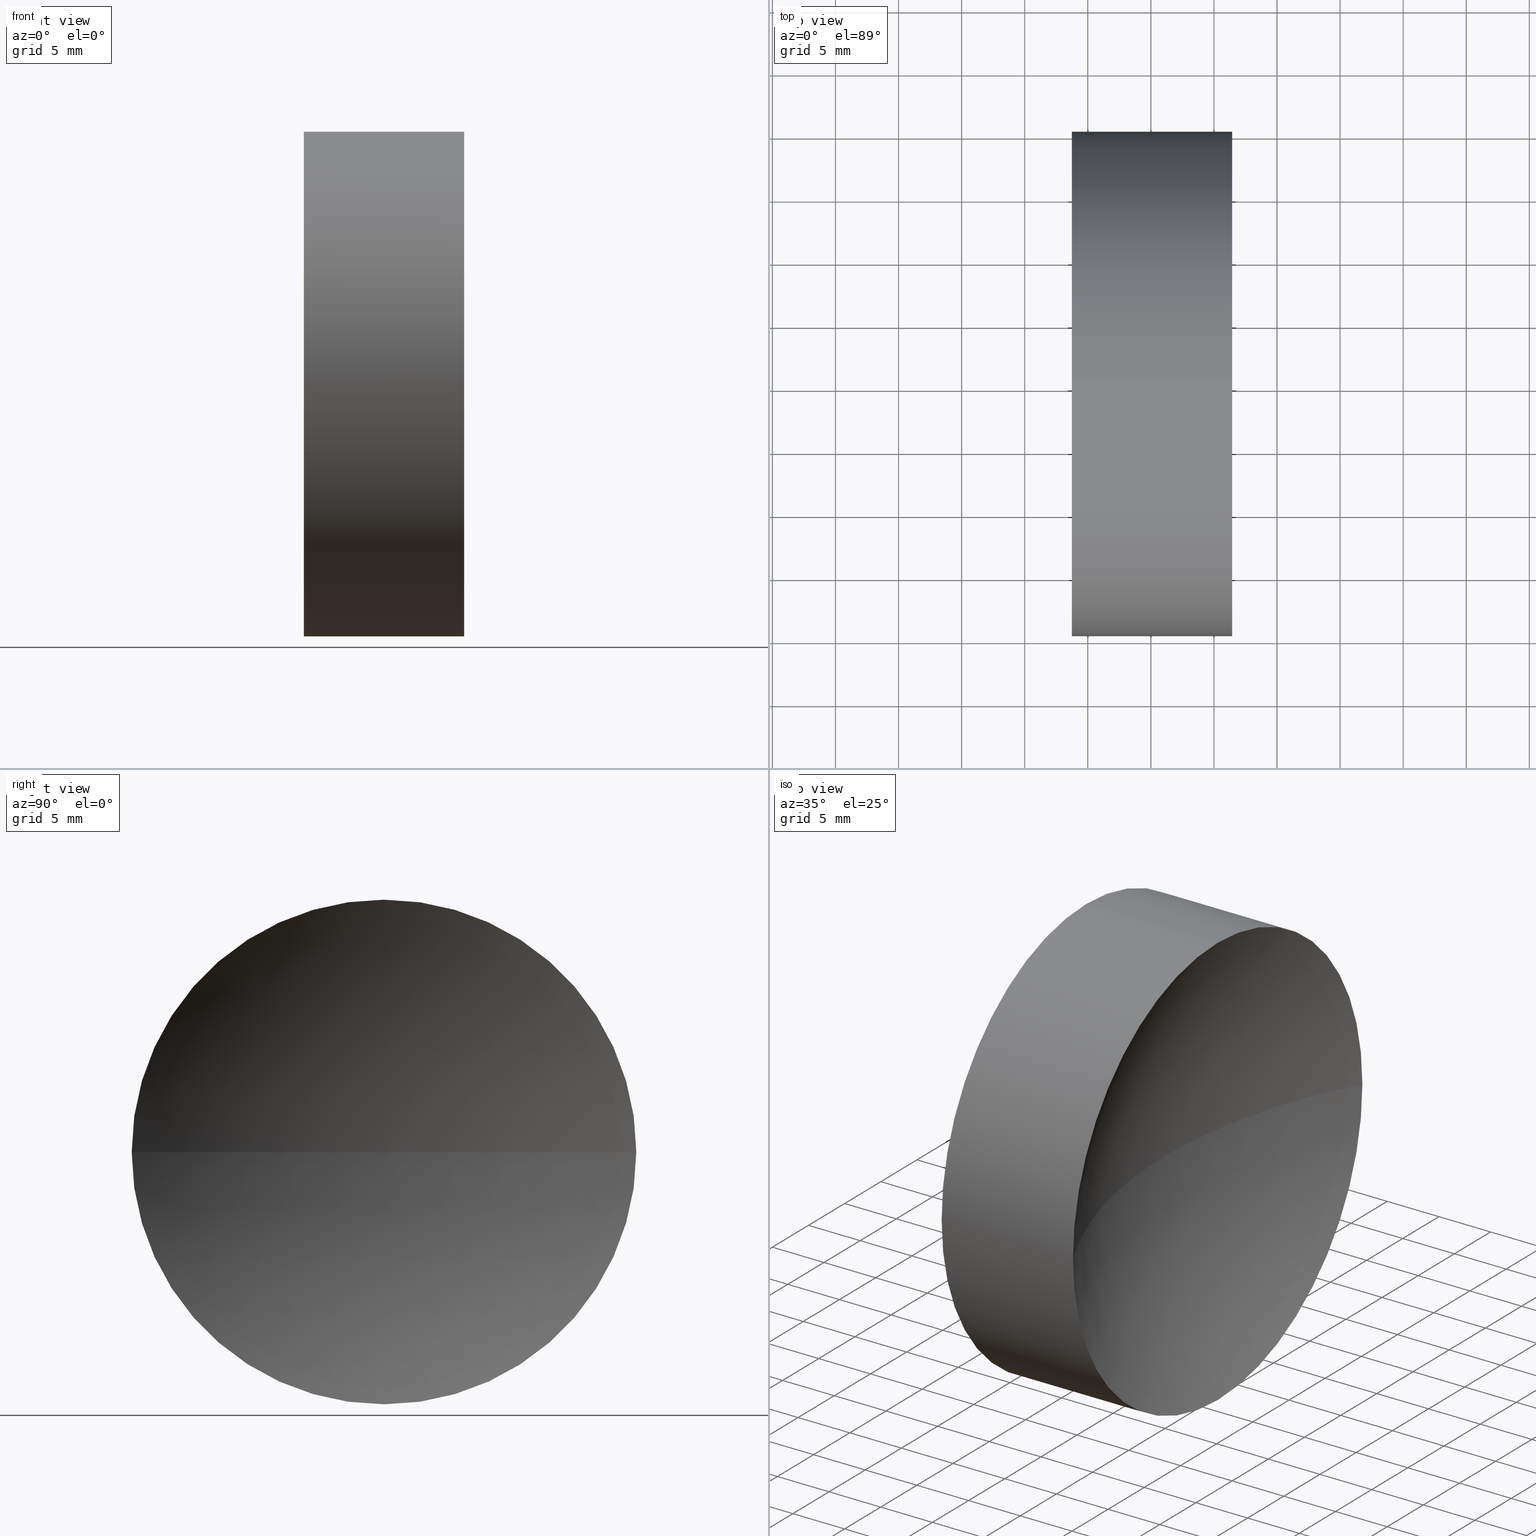
[diagram: canonical four-view strip — front | top / right | iso, engineering-drawing reading convention]
A machine part, canonical four-view strip (front | top / right | iso — engineering-drawing reading convention). The complete STEP part file that produces these views, byte-faithful:
ISO-10303-21;
HEADER;
FILE_DESCRIPTION (( 'STEP AP214' ),
    '1' );
FILE_NAME ('130011.STEP',
    '2019-07-01T01:35:22',
    ( '' ),
    ( '' ),
    'SwSTEP 2.0',
    'SolidWorks 2016',
    '' );
FILE_SCHEMA (( 'AUTOMOTIVE_DESIGN' ));
ENDSEC;

DATA;
#1 = CYLINDRICAL_SURFACE ( 'NONE', #89, 20.00000000000000400 ) ;
#2 = LINE ( 'NONE', #26, #125 ) ;
#3 =( LENGTH_UNIT ( ) NAMED_UNIT ( * ) SI_UNIT ( .MILLI., .METRE. ) );
#4 = CARTESIAN_POINT ( 'NONE',  ( 118.8409314837367800, 65.22260287298739500, 0.0000000000000000000 ) ) ;
#5 = ORIENTED_EDGE ( 'NONE', *, *, #176, .F. ) ;
#6 = ADVANCED_FACE ( 'NONE', ( #34 ), #199, .F. ) ;
#7 = AXIS2_PLACEMENT_3D ( 'NONE', #191, #171, #50 ) ;
#8 = SPHERICAL_SURFACE ( 'NONE', #23, 41.74000000000003000 ) ;
#9 = AXIS2_PLACEMENT_3D ( 'NONE', #86, #30, #120 ) ;
#10 = CARTESIAN_POINT ( 'NONE',  ( 121.3409314837367500, 65.22260287298739500, 0.0000000000000000000 ) ) ;
#11 = ORIENTED_EDGE ( 'NONE', *, *, #83, .F. ) ;
#12 = APPLICATION_PROTOCOL_DEFINITION ( 'draft international standard', 'automotive_design', 1998, #45 ) ;
#13 = DIRECTION ( 'NONE',  ( -1.000000000000000000, -0.0000000000000000000, -0.0000000000000000000 ) ) ;
#14 = DIRECTION ( 'NONE',  ( 0.0000000000000000000, -1.000000000000000000, 0.0000000000000000000 ) ) ;
#15 = EDGE_CURVE ( 'NONE', #48, #203, #57, .T. ) ;
#16 = ORIENTED_EDGE ( 'NONE', *, *, #79, .F. ) ;
#17 =( NAMED_UNIT ( * ) SI_UNIT ( $, .STERADIAN. ) SOLID_ANGLE_UNIT ( ) );
#18 = UNCERTAINTY_MEASURE_WITH_UNIT (LENGTH_MEASURE( 1.000000000000000100E-005 ), #207, 'distance_accuracy_value', 'NONE');
#19 = SHAPE_DEFINITION_REPRESENTATION ( #109, #216 ) ;
#20 = ORIENTED_EDGE ( 'NONE', *, *, #79, .T. ) ;
#21 = CIRCLE ( 'NONE', #226, 20.00000000000000400 ) ;
#22 = ORIENTED_EDGE ( 'NONE', *, *, #232, .T. ) ;
#23 = AXIS2_PLACEMENT_3D ( 'NONE', #220, #202, #165 ) ;
#24 = CIRCLE ( 'NONE', #122, 20.00000000000000400 ) ;
#25 = EDGE_LOOP ( 'NONE', ( #16, #22, #99, #155, #5, #114 ) ) ;
#26 = CARTESIAN_POINT ( 'NONE',  ( 106.1246527853420500, 65.22260287298739500, -20.00000000000000400 ) ) ;
#27 = DIRECTION ( 'NONE',  ( -1.000000000000000000, -0.0000000000000000000, -0.0000000000000000000 ) ) ;
#28 = ADVANCED_FACE ( 'NONE', ( #69 ), #8, .F. ) ;
#29 = CARTESIAN_POINT ( 'NONE',  ( 113.7373559817687900, 65.22260287298739500, 0.0000000000000000000 ) ) ;
#30 = DIRECTION ( 'NONE',  ( -1.000000000000000000, -0.0000000000000000000, -0.0000000000000000000 ) ) ;
#31 = DIRECTION ( 'NONE',  ( 0.0000000000000000000, 0.0000000000000000000, -1.000000000000000000 ) ) ;
#32 = CARTESIAN_POINT ( 'NONE',  ( 77.10093148373677300, 65.22260287298739500, 0.0000000000000000000 ) ) ;
#33 = SURFACE_STYLE_USAGE ( .BOTH. , #46 ) ;
#34 = FACE_OUTER_BOUND ( 'NONE', #63, .T. ) ;
#35 = SPHERICAL_SURFACE ( 'NONE', #73, 41.74000000000003000 ) ;
#36 = AXIS2_PLACEMENT_3D ( 'NONE', #29, #225, #228 ) ;
#37 = ORIENTED_EDGE ( 'NONE', *, *, #70, .T. ) ;
#38 = CARTESIAN_POINT ( 'NONE',  ( 77.10093148373677300, 65.22260287298739500, 0.0000000000000000000 ) ) ;
#39 = DIRECTION ( 'NONE',  ( 0.0000000000000000000, 0.0000000000000000000, -1.000000000000000000 ) ) ;
#40 = PRESENTATION_LAYER_ASSIGNMENT (  '', '', ( #103 ) ) ;
#41 = VERTEX_POINT ( 'NONE', #4 ) ;
#42 = DIRECTION ( 'NONE',  ( 0.0000000000000000000, 0.0000000000000000000, 1.000000000000000000 ) ) ;
#43 = CARTESIAN_POINT ( 'NONE',  ( 163.0809314837367800, 65.22260287298739500, 0.0000000000000000000 ) ) ;
#44 = MECHANICAL_DESIGN_GEOMETRIC_PRESENTATION_REPRESENTATION (  '', ( #141 ), #206 ) ;
#45 = APPLICATION_CONTEXT ( 'automotive_design' ) ;
#46 = SURFACE_SIDE_STYLE ('',( #156 ) ) ;
#47 = VERTEX_POINT ( 'NONE', #178 ) ;
#48 = VERTEX_POINT ( 'NONE', #113 ) ;
#49 = CARTESIAN_POINT ( 'NONE',  ( 0.0000000000000000000, 0.0000000000000000000, 0.0000000000000000000 ) ) ;
#50 = DIRECTION ( 'NONE',  ( 0.0000000000000000000, 0.0000000000000000000, 1.000000000000000000 ) ) ;
#51 = APPLICATION_CONTEXT ( 'automotive_design' ) ;
#52 = UNCERTAINTY_MEASURE_WITH_UNIT (LENGTH_MEASURE( 1.000000000000000100E-005 ), #3, 'distance_accuracy_value', 'NONE');
#53 = DIRECTION ( 'NONE',  ( 1.000000000000000000, 0.0000000000000000000, 0.0000000000000000000 ) ) ;
#54 = ORIENTED_EDGE ( 'NONE', *, *, #126, .F. ) ;
#55 = VERTEX_POINT ( 'NONE', #78 ) ;
#56 = CIRCLE ( 'NONE', #147, 20.00000000000000400 ) ;
#57 = CIRCLE ( 'NONE', #217, 41.74000000000003000 ) ;
#58 = MANIFOLD_SOLID_BREP ( '��ת1', #208 ) ;
#59 = CARTESIAN_POINT ( 'NONE',  ( 163.0809314837367800, 65.22260287298739500, 0.0000000000000000000 ) ) ;
#60 = DIRECTION ( 'NONE',  ( -1.000000000000000000, -0.0000000000000000000, -0.0000000000000000000 ) ) ;
#61 = SURFACE_STYLE_USAGE ( .BOTH. , #80 ) ;
#62 = VECTOR ( 'NONE', #60, 1000.000000000000000 ) ;
#63 = EDGE_LOOP ( 'NONE', ( #85, #190, #75, #129 ) ) ;
#64 = ORIENTED_EDGE ( 'NONE', *, *, #231, .F. ) ;
#65 = DIRECTION ( 'NONE',  ( -1.000000000000000000, -0.0000000000000000000, -0.0000000000000000000 ) ) ;
#66 = UNCERTAINTY_MEASURE_WITH_UNIT (LENGTH_MEASURE( 1.000000000000000100E-005 ), #154, 'distance_accuracy_value', 'NONE');
#67 = ORIENTED_EDGE ( 'NONE', *, *, #166, .T. ) ;
#68 = DIRECTION ( 'NONE',  ( 0.0000000000000000000, 1.224646799147353200E-016, -1.000000000000000000 ) ) ;
#69 = FACE_OUTER_BOUND ( 'NONE', #197, .T. ) ;
#70 = EDGE_CURVE ( 'NONE', #116, #112, #21, .T. ) ;
#71 = ORIENTED_EDGE ( 'NONE', *, *, #94, .T. ) ;
#72 = ORIENTED_EDGE ( 'NONE', *, *, #94, .F. ) ;
#73 = AXIS2_PLACEMENT_3D ( 'NONE', #43, #90, #14 ) ;
#74 = CIRCLE ( 'NONE', #213, 41.74000000000001600 ) ;
#75 = ORIENTED_EDGE ( 'NONE', *, *, #176, .T. ) ;
#76 = PRESENTATION_LAYER_ASSIGNMENT (  '', '', ( #141 ) ) ;
#77 = FACE_OUTER_BOUND ( 'NONE', #91, .T. ) ;
#78 = CARTESIAN_POINT ( 'NONE',  ( 126.4445069857047500, 65.22260287298739500, -20.00000000000000400 ) ) ;
#79 = EDGE_CURVE ( 'NONE', #55, #112, #2, .T. ) ;
#80 = SURFACE_SIDE_STYLE ('',( #136 ) ) ;
#81 = CARTESIAN_POINT ( 'NONE',  ( 113.7373559817687900, 45.22260287298739500, -2.449293598294707300E-015 ) ) ;
#82 =( GEOMETRIC_REPRESENTATION_CONTEXT ( 3 ) GLOBAL_UNCERTAINTY_ASSIGNED_CONTEXT ( ( #18 ) ) GLOBAL_UNIT_ASSIGNED_CONTEXT ( ( #207, #151, #227 ) ) REPRESENTATION_CONTEXT ( 'NONE', 'WORKASPACE' ) );
#83 = EDGE_CURVE ( 'NONE', #47, #203, #150, .T. ) ;
#84 = VERTEX_POINT ( 'NONE', #81 ) ;
#85 = ORIENTED_EDGE ( 'NONE', *, *, #137, .F. ) ;
#86 = CARTESIAN_POINT ( 'NONE',  ( 126.4445069857047500, 65.22260287298739500, 0.0000000000000000000 ) ) ;
#87 = PRODUCT_DEFINITION_CONTEXT ( 'detailed design', #51, 'design' ) ;
#88 = DIRECTION ( 'NONE',  ( 0.0000000000000000000, 0.0000000000000000000, 1.000000000000000000 ) ) ;
#89 = AXIS2_PLACEMENT_3D ( 'NONE', #194, #13, #88 ) ;
#90 = DIRECTION ( 'NONE',  ( 0.0000000000000000000, 0.0000000000000000000, 1.000000000000000000 ) ) ;
#91 = EDGE_LOOP ( 'NONE', ( #67, #20, #159, #64, #127, #71 ) ) ;
#92 = DIRECTION ( 'NONE',  ( 0.0000000000000000000, 0.0000000000000000000, 1.000000000000000000 ) ) ;
#93 = PRODUCT_DEFINITION_FORMATION_WITH_SPECIFIED_SOURCE ( '�κ�', '', #175, .NOT_KNOWN. ) ;
#94 = EDGE_CURVE ( 'NONE', #105, #48, #205, .T. ) ;
#95 = FACE_OUTER_BOUND ( 'NONE', #110, .T. ) ;
#96 = PRESENTATION_STYLE_ASSIGNMENT (( #61 ) ) ;
#97 = MECHANICAL_DESIGN_GEOMETRIC_PRESENTATION_REPRESENTATION (  '', ( #103 ), #158 ) ;
#98 = FILL_AREA_STYLE_COLOUR ( '', #185 ) ;
#99 = ORIENTED_EDGE ( 'NONE', *, *, #108, .T. ) ;
#100 =( NAMED_UNIT ( * ) PLANE_ANGLE_UNIT ( ) SI_UNIT ( $, .RADIAN. ) );
#101 = DIRECTION ( 'NONE',  ( 0.0000000000000000000, -1.224646799147353200E-016, 1.000000000000000000 ) ) ;
#102 = EDGE_CURVE ( 'NONE', #105, #192, #198, .T. ) ;
#103 = STYLED_ITEM ( 'NONE', ( #96 ), #58 ) ;
#104 = ORIENTED_EDGE ( 'NONE', *, *, #232, .F. ) ;
#105 = VERTEX_POINT ( 'NONE', #186 ) ;
#106 = SPHERICAL_SURFACE ( 'NONE', #219, 41.74000000000001600 ) ;
#107 = ORIENTED_EDGE ( 'NONE', *, *, #15, .T. ) ;
#108 = EDGE_CURVE ( 'NONE', #47, #105, #24, .T. ) ;
#109 = PRODUCT_DEFINITION_SHAPE ( 'NONE', 'NONE',  #177 ) ;
#110 = EDGE_LOOP ( 'NONE', ( #54, #146, #37, #139 ) ) ;
#111 = CIRCLE ( 'NONE', #130, 41.74000000000001600 ) ;
#112 = VERTEX_POINT ( 'NONE', #148 ) ;
#113 = CARTESIAN_POINT ( 'NONE',  ( 126.4445069857047500, 85.22260287298740900, 2.449293598294707300E-015 ) ) ;
#114 = ORIENTED_EDGE ( 'NONE', *, *, #223, .F. ) ;
#115 = DIRECTION ( 'NONE',  ( 0.0000000000000000000, 1.000000000000000000, 0.0000000000000000000 ) ) ;
#116 = VERTEX_POINT ( 'NONE', #117 ) ;
#117 = CARTESIAN_POINT ( 'NONE',  ( 113.7373559817687900, 85.22260287298739500, 0.0000000000000000000 ) ) ;
#118 = FILL_AREA_STYLE_COLOUR ( '', #214 ) ;
#119 = DIRECTION ( 'NONE',  ( 0.0000000000000000000, 0.0000000000000000000, 1.000000000000000000 ) ) ;
#120 = DIRECTION ( 'NONE',  ( 0.0000000000000000000, 0.0000000000000000000, 1.000000000000000000 ) ) ;
#121 = FACE_OUTER_BOUND ( 'NONE', #25, .T. ) ;
#122 = AXIS2_PLACEMENT_3D ( 'NONE', #230, #212, #42 ) ;
#123 = PRODUCT_CONTEXT ( 'NONE', #45, 'mechanical' ) ;
#124 = PRODUCT_RELATED_PRODUCT_CATEGORY ( 'part', '', ( #175 ) ) ;
#125 = VECTOR ( 'NONE', #160, 1000.000000000000000 ) ;
#126 = EDGE_CURVE ( 'NONE', #41, #84, #111, .T. ) ;
#127 = ORIENTED_EDGE ( 'NONE', *, *, #102, .F. ) ;
#128 = CARTESIAN_POINT ( 'NONE',  ( 77.10093148373677300, 65.22260287298739500, 0.0000000000000000000 ) ) ;
#129 = ORIENTED_EDGE ( 'NONE', *, *, #231, .T. ) ;
#130 = AXIS2_PLACEMENT_3D ( 'NONE', #128, #68, #133 ) ;
#131 = AXIS2_PLACEMENT_3D ( 'NONE', #152, #170, #149 ) ;
#132 = CARTESIAN_POINT ( 'NONE',  ( 77.10093148373677300, 65.22260287298739500, 0.0000000000000000000 ) ) ;
#133 = DIRECTION ( 'NONE',  ( 0.0000000000000000000, 1.000000000000000000, 1.224646799147353200E-016 ) ) ;
#134 = CARTESIAN_POINT ( 'NONE',  ( 113.7373559817687900, 65.22260287298739500, 0.0000000000000000000 ) ) ;
#135 = CIRCLE ( 'NONE', #36, 20.00000000000000400 ) ;
#136 = SURFACE_STYLE_FILL_AREA ( #182 ) ;
#137 = EDGE_CURVE ( 'NONE', #41, #116, #74, .T. ) ;
#138 = APPLICATION_PROTOCOL_DEFINITION ( 'draft international standard', 'automotive_design', 1998, #51 ) ;
#139 = ORIENTED_EDGE ( 'NONE', *, *, #223, .T. ) ;
#140 = CIRCLE ( 'NONE', #163, 20.00000000000000400 ) ;
#141 = STYLED_ITEM ( 'NONE', ( #168 ), #216 ) ;
#142 = ORIENTED_EDGE ( 'NONE', *, *, #83, .T. ) ;
#143 = ADVANCED_FACE ( 'NONE', ( #77 ), #145, .T. ) ;
#144 = DIRECTION ( 'NONE',  ( 0.0000000000000000000, 0.0000000000000000000, 1.000000000000000000 ) ) ;
#145 = CYLINDRICAL_SURFACE ( 'NONE', #7, 20.00000000000000400 ) ;
#146 = ORIENTED_EDGE ( 'NONE', *, *, #137, .T. ) ;
#147 = AXIS2_PLACEMENT_3D ( 'NONE', #134, #65, #209 ) ;
#148 = CARTESIAN_POINT ( 'NONE',  ( 113.7373559817687900, 65.22260287298739500, -20.00000000000000400 ) ) ;
#149 = DIRECTION ( 'NONE',  ( 0.0000000000000000000, 0.0000000000000000000, 1.000000000000000000 ) ) ;
#150 = CIRCLE ( 'NONE', #174, 41.74000000000003000 ) ;
#151 =( NAMED_UNIT ( * ) PLANE_ANGLE_UNIT ( ) SI_UNIT ( $, .RADIAN. ) );
#152 = CARTESIAN_POINT ( 'NONE',  ( 113.7373559817687900, 65.22260287298739500, 0.0000000000000000000 ) ) ;
#153 = DIRECTION ( 'NONE',  ( 0.0000000000000000000, 1.000000000000000000, 0.0000000000000000000 ) ) ;
#154 =( LENGTH_UNIT ( ) NAMED_UNIT ( * ) SI_UNIT ( .MILLI., .METRE. ) );
#155 = ORIENTED_EDGE ( 'NONE', *, *, #102, .T. ) ;
#156 = SURFACE_STYLE_FILL_AREA ( #188 ) ;
#157 = AXIS2_PLACEMENT_3D ( 'NONE', #49, #195, #53 ) ;
#158 =( GEOMETRIC_REPRESENTATION_CONTEXT ( 3 ) GLOBAL_UNCERTAINTY_ASSIGNED_CONTEXT ( ( #52 ) ) GLOBAL_UNIT_ASSIGNED_CONTEXT ( ( #3, #100, #222 ) ) REPRESENTATION_CONTEXT ( 'NONE', 'WORKASPACE' ) );
#159 = ORIENTED_EDGE ( 'NONE', *, *, #70, .F. ) ;
#160 = DIRECTION ( 'NONE',  ( -1.000000000000000000, -0.0000000000000000000, -0.0000000000000000000 ) ) ;
#161 = CARTESIAN_POINT ( 'NONE',  ( 126.4445069857047500, 65.22260287298739500, 0.0000000000000000000 ) ) ;
#162 = DIRECTION ( 'NONE',  ( 0.0000000000000000000, 0.0000000000000000000, -1.000000000000000000 ) ) ;
#163 = AXIS2_PLACEMENT_3D ( 'NONE', #169, #229, #92 ) ;
#164 = ADVANCED_FACE ( 'NONE', ( #121 ), #1, .T. ) ;
#165 = DIRECTION ( 'NONE',  ( 0.0000000000000000000, -1.000000000000000000, 0.0000000000000000000 ) ) ;
#166 = EDGE_CURVE ( 'NONE', #48, #55, #140, .T. ) ;
#167 = DIRECTION ( 'NONE',  ( 0.0000000000000000000, 0.0000000000000000000, 1.000000000000000000 ) ) ;
#168 = PRESENTATION_STYLE_ASSIGNMENT (( #33 ) ) ;
#169 = CARTESIAN_POINT ( 'NONE',  ( 126.4445069857047500, 65.22260287298739500, 0.0000000000000000000 ) ) ;
#170 = DIRECTION ( 'NONE',  ( -1.000000000000000000, -0.0000000000000000000, -0.0000000000000000000 ) ) ;
#171 = DIRECTION ( 'NONE',  ( -1.000000000000000000, -0.0000000000000000000, -0.0000000000000000000 ) ) ;
#172 =( NAMED_UNIT ( * ) PLANE_ANGLE_UNIT ( ) SI_UNIT ( $, .RADIAN. ) );
#173 = ORIENTED_EDGE ( 'NONE', *, *, #166, .F. ) ;
#174 = AXIS2_PLACEMENT_3D ( 'NONE', #221, #39, #179 ) ;
#175 = PRODUCT ( '130011', '130011', '', ( #123 ) ) ;
#176 = EDGE_CURVE ( 'NONE', #84, #192, #211, .T. ) ;
#177 = PRODUCT_DEFINITION ( 'δ֪', '', #93, #87 ) ;
#178 = CARTESIAN_POINT ( 'NONE',  ( 126.4445069857047500, 45.22260287298739500, 0.0000000000000000000 ) ) ;
#179 = DIRECTION ( 'NONE',  ( -1.000000000000000000, 0.0000000000000000000, 0.0000000000000000000 ) ) ;
#180 = DIRECTION ( 'NONE',  ( -1.000000000000000000, -0.0000000000000000000, -0.0000000000000000000 ) ) ;
#181 = ORIENTED_EDGE ( 'NONE', *, *, #108, .F. ) ;
#182 = FILL_AREA_STYLE ('',( #98 ) ) ;
#183 = CARTESIAN_POINT ( 'NONE',  ( 113.7373559817687900, 65.22260287298739500, 0.0000000000000000000 ) ) ;
#184 = ADVANCED_FACE ( 'NONE', ( #215 ), #35, .F. ) ;
#185 = COLOUR_RGB ( '',1.000000000000000000, 1.000000000000000000, 1.000000000000000000 ) ;
#186 = CARTESIAN_POINT ( 'NONE',  ( 126.4445069857047500, 65.22260287298739500, 20.00000000000000400 ) ) ;
#187 = AXIS2_PLACEMENT_3D ( 'NONE', #161, #180, #167 ) ;
#188 = FILL_AREA_STYLE ('',( #118 ) ) ;
#189 = EDGE_LOOP ( 'NONE', ( #196, #72, #181, #142 ) ) ;
#190 = ORIENTED_EDGE ( 'NONE', *, *, #126, .T. ) ;
#191 = CARTESIAN_POINT ( 'NONE',  ( 106.1246527853420500, 65.22260287298739500, 0.0000000000000000000 ) ) ;
#192 = VERTEX_POINT ( 'NONE', #210 ) ;
#193 = DIRECTION ( 'NONE',  ( 1.000000000000000000, 0.0000000000000000000, 0.0000000000000000000 ) ) ;
#194 = CARTESIAN_POINT ( 'NONE',  ( 106.1246527853420500, 65.22260287298739500, 0.0000000000000000000 ) ) ;
#195 = DIRECTION ( 'NONE',  ( 0.0000000000000000000, 0.0000000000000000000, 1.000000000000000000 ) ) ;
#196 = ORIENTED_EDGE ( 'NONE', *, *, #15, .F. ) ;
#197 = EDGE_LOOP ( 'NONE', ( #173, #107, #11, #104 ) ) ;
#198 = LINE ( 'NONE', #200, #62 ) ;
#199 = SPHERICAL_SURFACE ( 'NONE', #204, 41.74000000000001600 ) ;
#200 = CARTESIAN_POINT ( 'NONE',  ( 106.1246527853420500, 65.22260287298739500, 20.00000000000000400 ) ) ;
#201 = DIRECTION ( 'NONE',  ( 0.0000000000000000000, -1.000000000000000000, -1.224646799147353000E-016 ) ) ;
#202 = DIRECTION ( 'NONE',  ( 0.0000000000000000000, 0.0000000000000000000, 1.000000000000000000 ) ) ;
#203 = VERTEX_POINT ( 'NONE', #10 ) ;
#204 = AXIS2_PLACEMENT_3D ( 'NONE', #38, #162, #115 ) ;
#205 = CIRCLE ( 'NONE', #187, 20.00000000000000400 ) ;
#206 =( GEOMETRIC_REPRESENTATION_CONTEXT ( 3 ) GLOBAL_UNCERTAINTY_ASSIGNED_CONTEXT ( ( #66 ) ) GLOBAL_UNIT_ASSIGNED_CONTEXT ( ( #154, #172, #17 ) ) REPRESENTATION_CONTEXT ( 'NONE', 'WORKASPACE' ) );
#207 =( LENGTH_UNIT ( ) NAMED_UNIT ( * ) SI_UNIT ( .MILLI., .METRE. ) );
#208 = CLOSED_SHELL ( 'NONE', ( #143, #28, #6, #224, #184, #164 ) ) ;
#209 = DIRECTION ( 'NONE',  ( 0.0000000000000000000, 0.0000000000000000000, 1.000000000000000000 ) ) ;
#210 = CARTESIAN_POINT ( 'NONE',  ( 113.7373559817687900, 65.22260287298739500, 20.00000000000000400 ) ) ;
#211 = CIRCLE ( 'NONE', #131, 20.00000000000000400 ) ;
#212 = DIRECTION ( 'NONE',  ( -1.000000000000000000, -0.0000000000000000000, -0.0000000000000000000 ) ) ;
#213 = AXIS2_PLACEMENT_3D ( 'NONE', #132, #119, #193 ) ;
#214 = COLOUR_RGB ( '',1.000000000000000000, 1.000000000000000000, 1.000000000000000000 ) ;
#215 = FACE_OUTER_BOUND ( 'NONE', #189, .T. ) ;
#216 = ADVANCED_BREP_SHAPE_REPRESENTATION ( '130011', ( #58, #157 ), #82 ) ;
#217 = AXIS2_PLACEMENT_3D ( 'NONE', #59, #101, #201 ) ;
#218 = CIRCLE ( 'NONE', #9, 20.00000000000000400 ) ;
#219 = AXIS2_PLACEMENT_3D ( 'NONE', #32, #31, #153 ) ;
#220 = CARTESIAN_POINT ( 'NONE',  ( 163.0809314837367800, 65.22260287298739500, 0.0000000000000000000 ) ) ;
#221 = CARTESIAN_POINT ( 'NONE',  ( 163.0809314837367800, 65.22260287298739500, 0.0000000000000000000 ) ) ;
#222 =( NAMED_UNIT ( * ) SI_UNIT ( $, .STERADIAN. ) SOLID_ANGLE_UNIT ( ) );
#223 = EDGE_CURVE ( 'NONE', #112, #84, #135, .T. ) ;
#224 = ADVANCED_FACE ( 'NONE', ( #95 ), #106, .F. ) ;
#225 = DIRECTION ( 'NONE',  ( -1.000000000000000000, -0.0000000000000000000, -0.0000000000000000000 ) ) ;
#226 = AXIS2_PLACEMENT_3D ( 'NONE', #183, #27, #144 ) ;
#227 =( NAMED_UNIT ( * ) SI_UNIT ( $, .STERADIAN. ) SOLID_ANGLE_UNIT ( ) );
#228 = DIRECTION ( 'NONE',  ( 0.0000000000000000000, 0.0000000000000000000, 1.000000000000000000 ) ) ;
#229 = DIRECTION ( 'NONE',  ( -1.000000000000000000, -0.0000000000000000000, -0.0000000000000000000 ) ) ;
#230 = CARTESIAN_POINT ( 'NONE',  ( 126.4445069857047500, 65.22260287298739500, 0.0000000000000000000 ) ) ;
#231 = EDGE_CURVE ( 'NONE', #192, #116, #56, .T. ) ;
#232 = EDGE_CURVE ( 'NONE', #55, #47, #218, .T. ) ;
ENDSEC;
END-ISO-10303-21;
